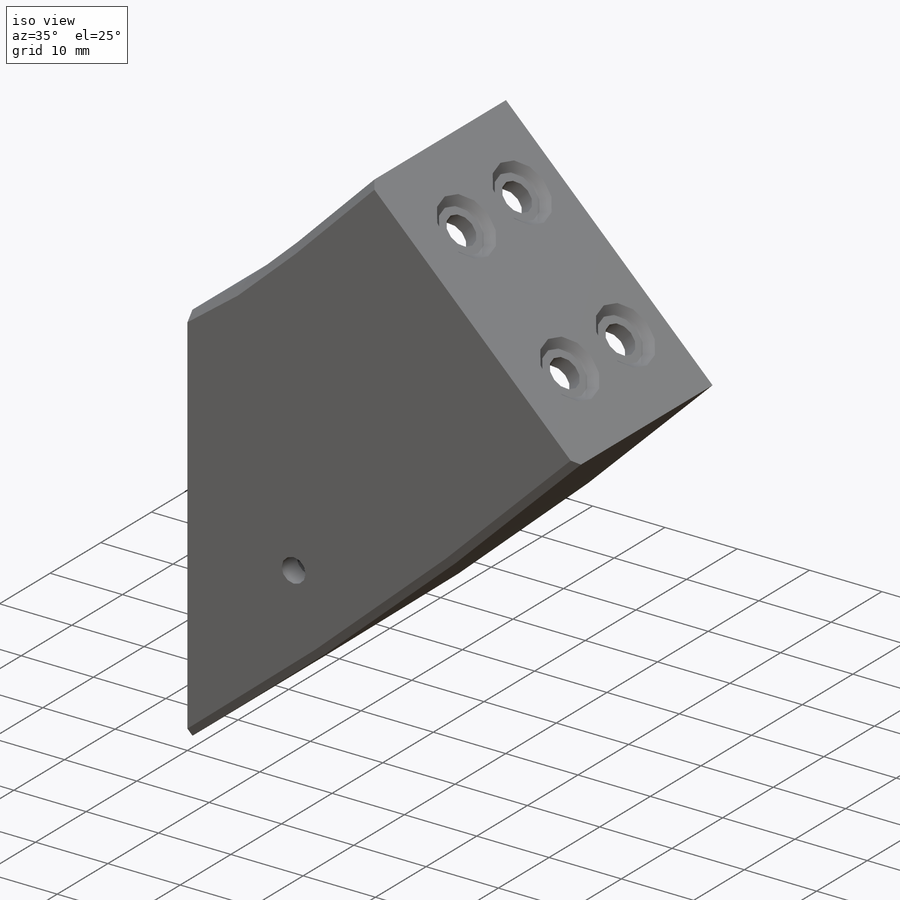
[diagram: iso view]
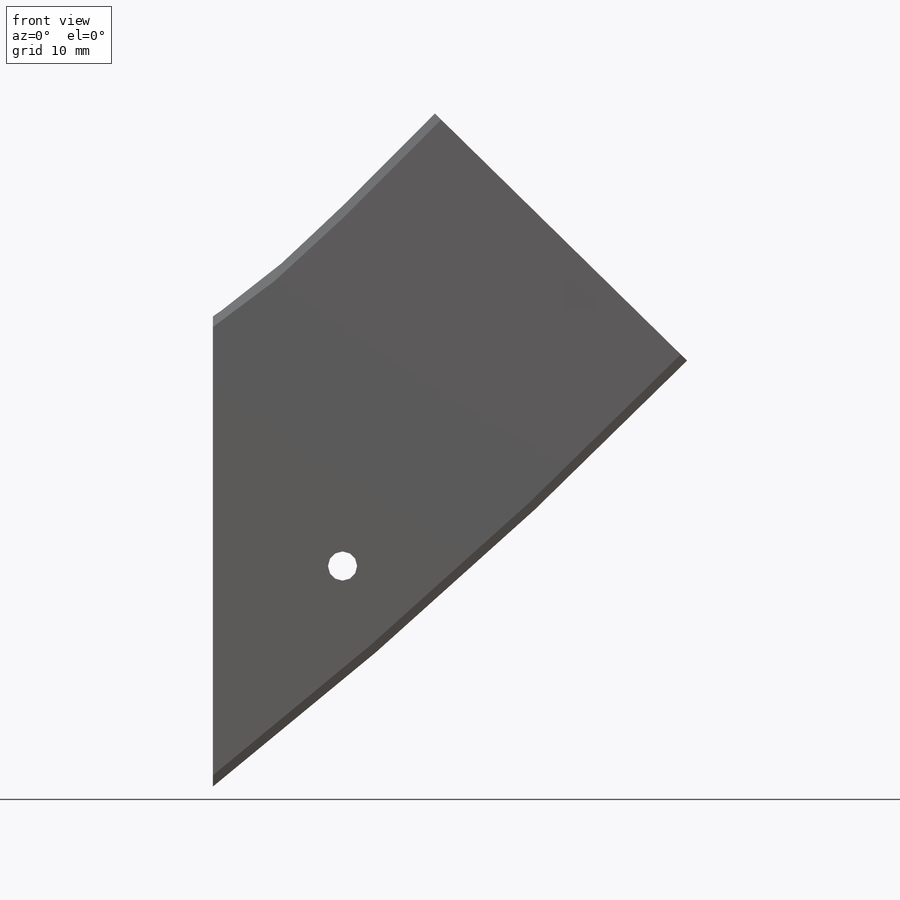
[diagram: front view]
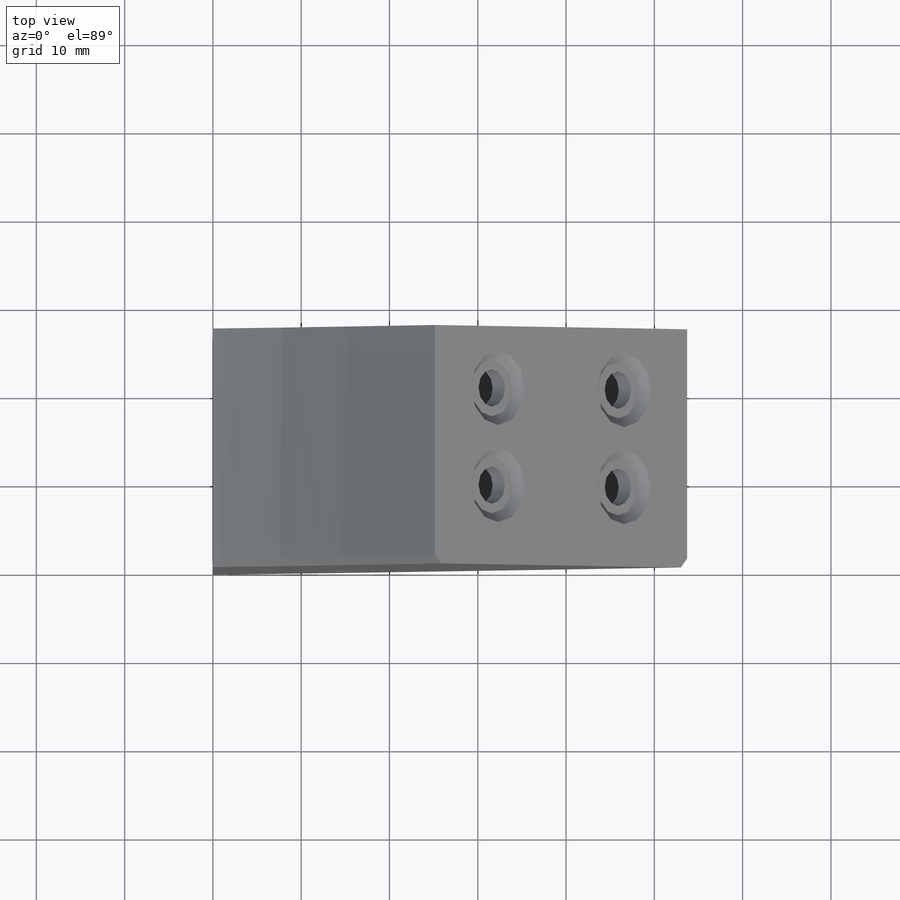
[diagram: top view]
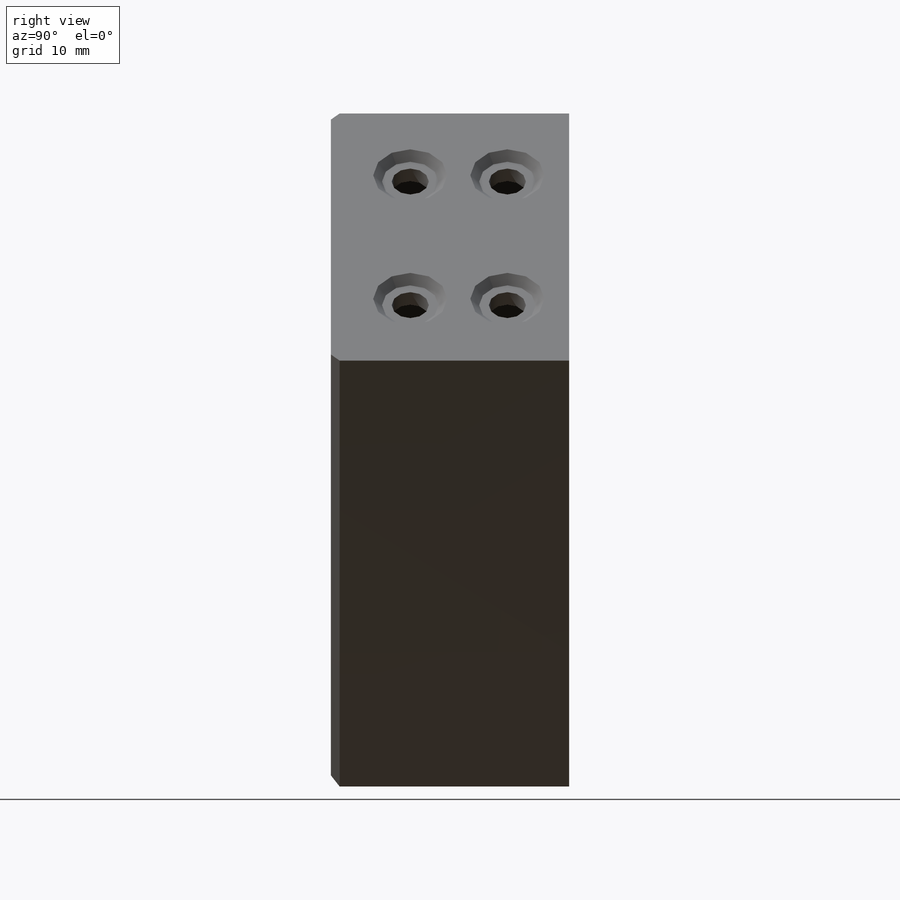
[diagram: right view]
SOLIDWORKS PART (.sldprt)
format: sldprt  version: not decoded by parser v0  size: 581,120 bytes
history: native  units: mm
features: sketch x8, cut_extrude x6, material x1, extrude x1, pattern_linear x1 (+16 scaffold rows collapsed; 3 parser-record rows omitted)
feature tree (36):
  scaffold x16  (default folders/planes/origin — collapsed)
  material  "Material <not specified>"
  parser-record x3  (decoder bookkeeping rows leaked as tree rows — omitted from the tree; the rows remain in map.json)
  sketch  "Sketch1"
  cut_extrude  "Cut-Extrude1"  [1 undecoded]
  sketch  "Sketch2"
  sketch  "Sketch23"  dims[D1=4.2mm]
  cut_extrude  "Cut-Screw Hole"  [1 undecoded]
  sketch  "Sketch3"  dims[D1=2.1mm]
  cut_extrude  "Cut-Cone Indentation"  Depth=1mm
  sketch  "Sketch24"  dims[D1=4.2mm]
  cut_extrude  "Cut-Screw Hole1"  [1 undecoded]
  sketch  "Sketch31"  dims[D1=2.1mm]
  cut_extrude  "Cut-Cone Indentation1"  Depth=1mm
  sketch  "Sketch32"  dims[D1=10.0mm]
  extrude  "Boss-Nut Boss"  Depth=4mm
  sketch  "Sketch25"  dims[Width=5.65mm]
  cut_extrude  "Cut-Extrude11"  Depth=4mm
  pattern_linear  "LPattern1"  Count1=2 Count2=1 Spacing1=11mm Spacing2=10mm
decode coverage: 11 of 16 modeling features carry decoded parameters
note: 3 parameter values undecoded
summary: no parameter record found for 3 features
note: suppression state not decoded; provenance and decode notes live in map.json
